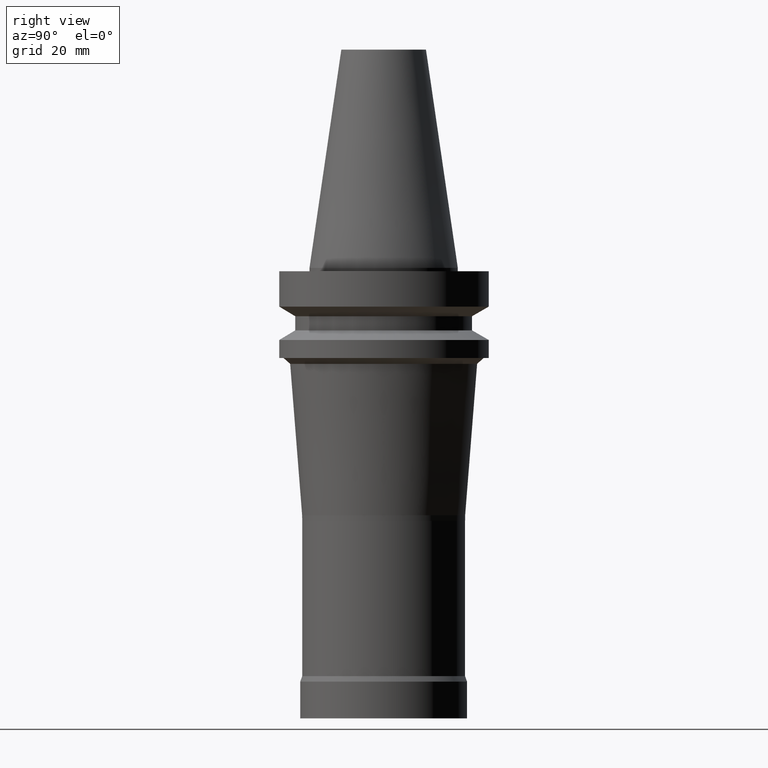
[diagram: clean part render]
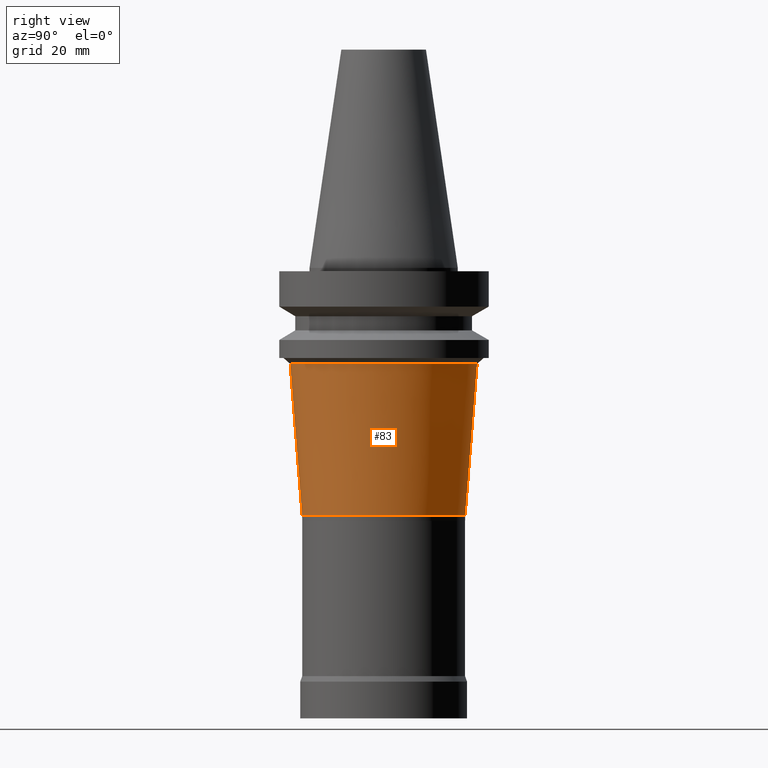
[diagram: same view with one face highlighted and labeled with its STEP entity id]
A machine part, right view. The second image highlights one B-rep face of the part: STEP entity #83.
In plain terms, the highlighted conical surface has half-angle 4.519 deg.
Its self-contained STEP definition (entity closure, byte-faithful):
#83=ADVANCED_FACE('',(#117,#118),#119,.T.);
#117=FACE_BOUND('',#166,.T.);
#118=FACE_BOUND('',#167,.T.);
#119=CONICAL_SURFACE('',#168,26.2216072133036,0.0788715157919261);
#166=EDGE_LOOP('',(#231));
#167=EDGE_LOOP('',(#232));
#168=AXIS2_PLACEMENT_3D('',#233,#234,#235);
#231=ORIENTED_EDGE('',*,*,#283,.F.);
#232=ORIENTED_EDGE('',*,*,#282,.T.);
#233=CARTESIAN_POINT('',(3.150318994572E-015,6.300637989144E-015,-51.4486135392732));
#234=DIRECTION('',(-6.12323399573677E-017,-1.22464679914735E-016,1.0));
#235=DIRECTION('',(-1.23259516440783E-032,1.0,1.22464679914735E-016));
#282=EDGE_CURVE('',#306,#306,#307,.T.);
#283=EDGE_CURVE('',#308,#308,#309,.T.);
#306=VERTEX_POINT('',#338);
#307=CIRCLE('',#339,28.0154604614219);
#308=VERTEX_POINT('',#340);
#309=CIRCLE('',#341,24.4277539651853);
#338=CARTESIAN_POINT('',(1.76054004381667E-015,28.015460461422,-28.7518008464551));
#339=AXIS2_PLACEMENT_3D('',#378,#379,#380);
#340=CARTESIAN_POINT('',(4.54009794532733E-015,24.4277539651853,-74.1454262320912));
#341=AXIS2_PLACEMENT_3D('',#381,#382,#383);
#378=CARTESIAN_POINT('',(1.76054004381667E-015,3.52108008763334E-015,-28.7518008464551));
#379=DIRECTION('',(6.12323399573677E-017,1.22464679914735E-016,-1.0));
#380=DIRECTION('',(-1.23259516440783E-032,1.0,1.22464679914735E-016));
#381=CARTESIAN_POINT('',(4.54009794532733E-015,9.08019589065467E-015,-74.1454262320912));
#382=DIRECTION('',(6.12323399573677E-017,1.22464679914735E-016,-1.0));
#383=DIRECTION('',(-1.23259516440783E-032,1.0,1.22464679914735E-016));